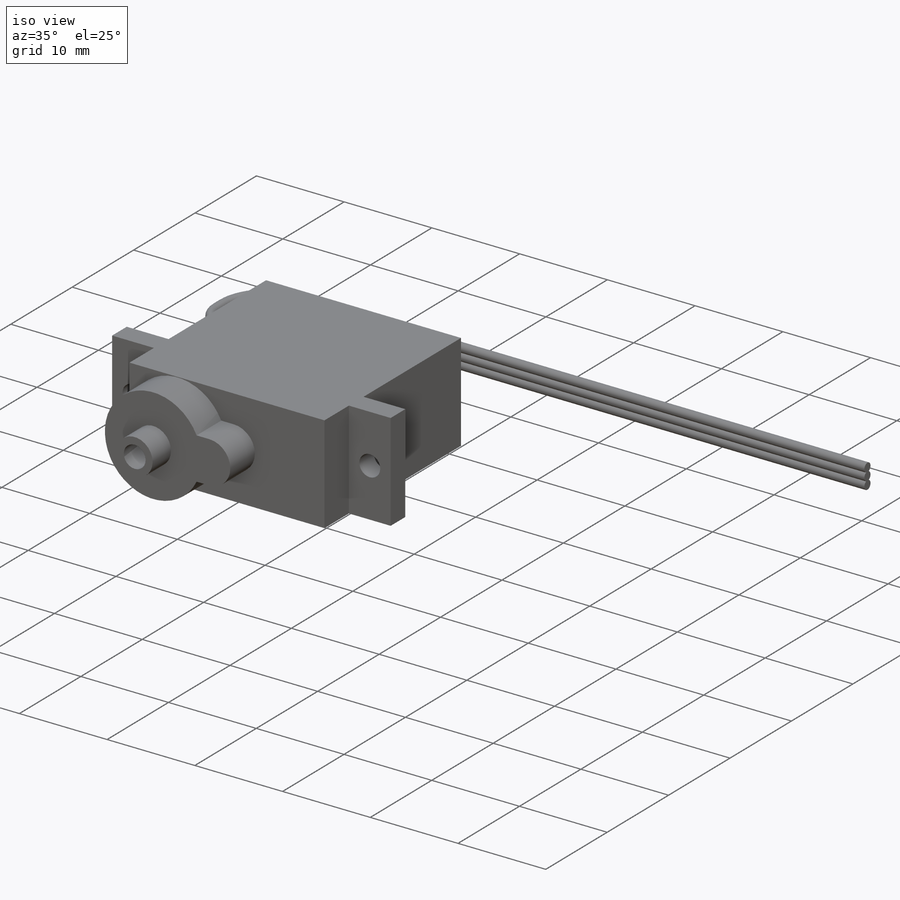
[diagram: iso view]
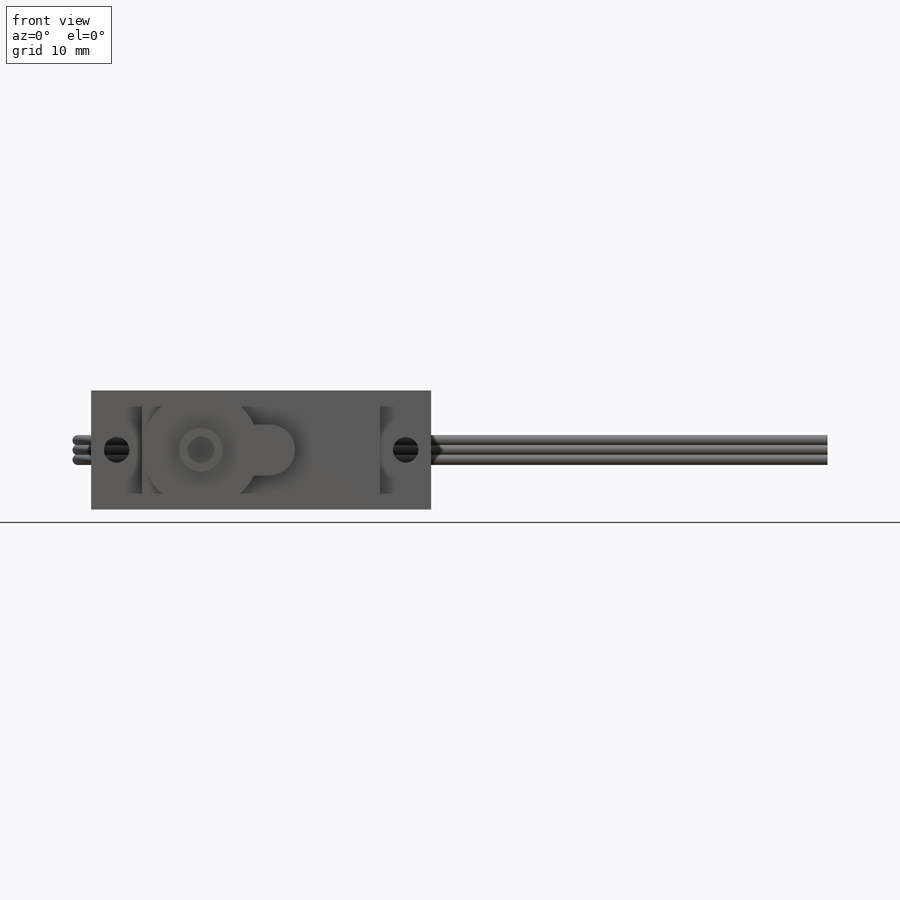
[diagram: front view]
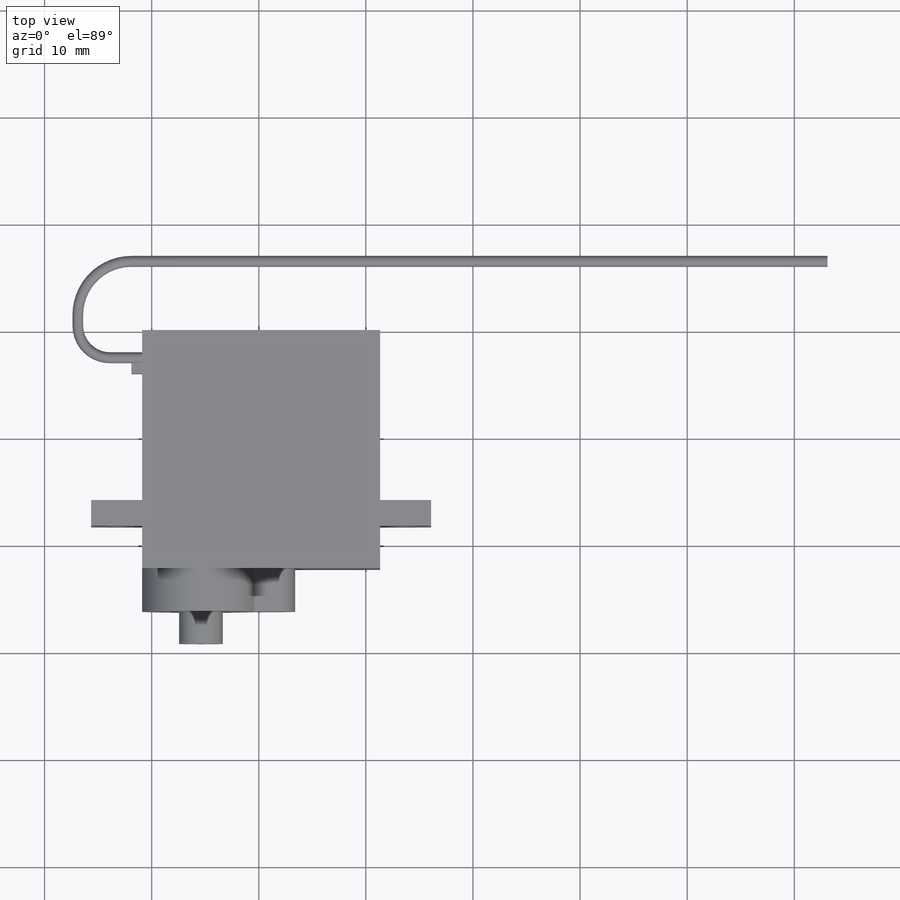
[diagram: top view]
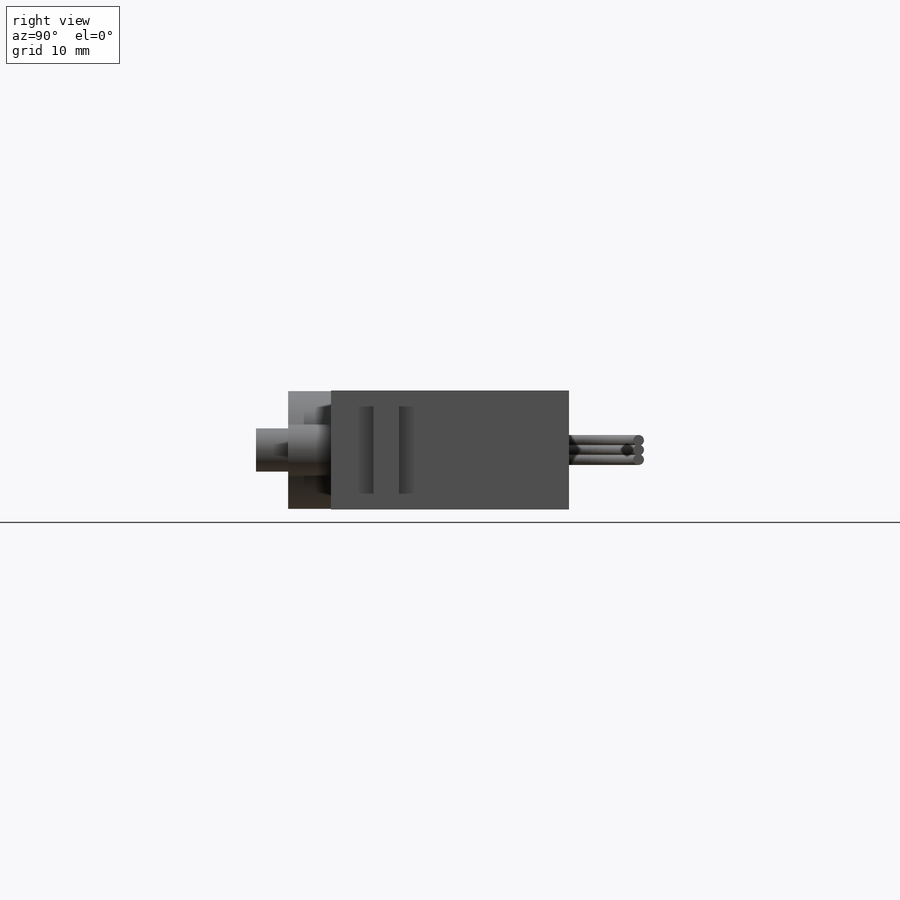
[diagram: right view]
SOLIDWORKS PART (.sldprt)
format: sldprt  version: not decoded by parser v0  size: 379,904 bytes
history: native  units: mm
features: sketch x7, extrude x4, plane x3, material x1, cut_extrude x1, sweep x1 (+10 scaffold rows collapsed)
feature tree (27):
  scaffold x10  (default folders/planes/origin — collapsed)
  material  "11 523"
  plane  "Přední rovina"
  plane  "Horní rovina"
  plane  "Pravá rovina"
  sketch  "Skica1"
  extrude  "Přidat vysunutím1"  Depth=11.11mm
  sketch  "Skica2"  dims[D1=11.0mm]
  extrude  "Přidat vysunutím2"  Depth=4mm
  sketch  "Skica3"
  extrude  "Přidat vysunutím3"  Depth=3mm
  sketch  "Skica5"
  cut_extrude  "Odebrat vysunutím1"  Depth=23mm
  sketch  "Skica7"  dims[D1=4.0mm D2=1.0mm D3=3.0mm]
  extrude  "Přidat vysunutím4"  Depth=1mm
  sketch  "Skica8"  dims[D3=1.0mm D1=0.9mm D2=0.9mm]
  sketch  "Skica9"  dims[c1.D1=3.0mm c1.D5=5.0mm c1.D2=~3.78789mm c2.D2=90.0deg c3.D2=6.0mm c3.D3=9.0mm c3.D4=70.0mm]
  sweep  "Táhnout po křivce3"
decode coverage: 9 of 13 modeling features carry decoded parameters
note: ~ marks probable driven/reference dimensions
note: suppression state not decoded; provenance and decode notes live in map.json
